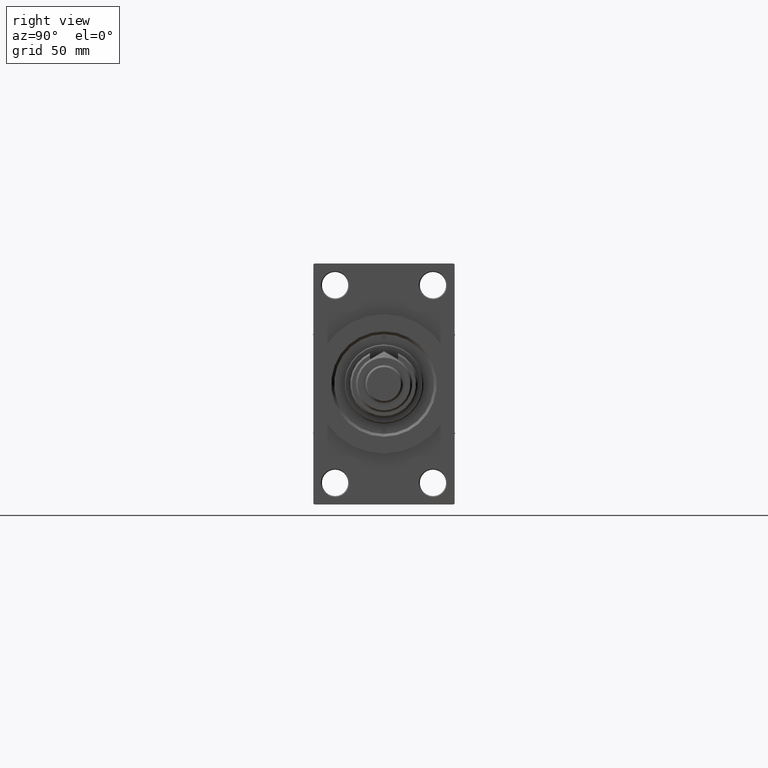
[diagram: clean part render]
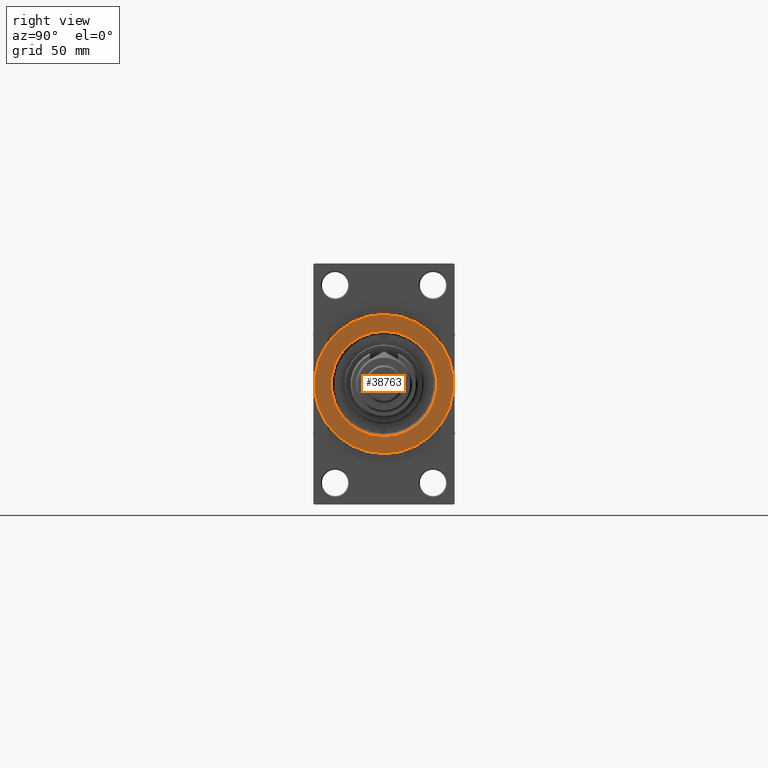
[diagram: same view with one face highlighted and labeled with its STEP entity id]
A machine part, right view. The second image highlights one B-rep face of the part: STEP entity #38763.
In plain terms, the highlighted planar face has unit normal (1, 0, 0).
Its self-contained STEP definition (entity closure, byte-faithful):
#418 = CIRCLE ( 'NONE', #20701, 37.00000000000000000 ) ;
#1827 = FACE_BOUND ( 'NONE', #17226, .T. ) ;
#2174 = EDGE_CURVE ( 'NONE', #27809, #32198, #19578, .T. ) ;
#4105 = ORIENTED_EDGE ( 'NONE', *, *, #38352, .T. ) ;
#4318 = CARTESIAN_POINT ( 'NONE',  ( 234.0000000000000284, 0.000000000000000000, 0.000000000000000000 ) ) ;
#6650 = FACE_OUTER_BOUND ( 'NONE', #37333, .T. ) ;
#9289 = ORIENTED_EDGE ( 'NONE', *, *, #2174, .T. ) ;
#10550 = EDGE_CURVE ( 'NONE', #44955, #48350, #39353, .T. ) ;
#12465 = CARTESIAN_POINT ( 'NONE',  ( 234.0000000000000284, 3.429011037612588881E-15, 27.99999999999999645 ) ) ;
#13854 = ORIENTED_EDGE ( 'NONE', *, *, #10550, .T. ) ;
#14364 = CIRCLE ( 'NONE', #20837, 27.99999999999999645 ) ;
#14510 = ORIENTED_EDGE ( 'NONE', *, *, #45498, .T. ) ;
#15665 = CARTESIAN_POINT ( 'NONE',  ( 234.0000000000000284, 0.000000000000000000, 0.000000000000000000 ) ) ;
#17226 = EDGE_LOOP ( 'NONE', ( #9289, #14510 ) ) ;
#17398 = CARTESIAN_POINT ( 'NONE',  ( 234.0000000000000284, 0.000000000000000000, 0.000000000000000000 ) ) ;
#19578 = CIRCLE ( 'NONE', #47164, 27.99999999999999645 ) ;
#19802 = DIRECTION ( 'NONE',  ( 0.000000000000000000, 0.000000000000000000, -1.000000000000000000 ) ) ;
#20701 = AXIS2_PLACEMENT_3D ( 'NONE', #17398, #40025, #48152 ) ;
#20837 = AXIS2_PLACEMENT_3D ( 'NONE', #33901, #42531, #45840 ) ;
#21715 = CARTESIAN_POINT ( 'NONE',  ( 234.0000000000000284, 0.000000000000000000, -27.99999999999999645 ) ) ;
#22146 = PLANE ( 'NONE',  #23952 ) ;
#22147 = CARTESIAN_POINT ( 'NONE',  ( 234.0000000000000284, 0.000000000000000000, 37.00000000000000000 ) ) ;
#23952 = AXIS2_PLACEMENT_3D ( 'NONE', #36892, #36636, #48593 ) ;
#26947 = DIRECTION ( 'NONE',  ( 1.000000000000000000, 0.000000000000000000, 0.000000000000000000 ) ) ;
#27809 = VERTEX_POINT ( 'NONE', #21715 ) ;
#32198 = VERTEX_POINT ( 'NONE', #12465 ) ;
#33901 = CARTESIAN_POINT ( 'NONE',  ( 234.0000000000000284, 0.000000000000000000, 0.000000000000000000 ) ) ;
#36636 = DIRECTION ( 'NONE',  ( 1.000000000000000000, 0.000000000000000000, 0.000000000000000000 ) ) ;
#36892 = CARTESIAN_POINT ( 'NONE',  ( 234.0000000000000284, 0.000000000000000000, 0.000000000000000000 ) ) ;
#37333 = EDGE_LOOP ( 'NONE', ( #13854, #4105 ) ) ;
#38352 = EDGE_CURVE ( 'NONE', #48350, #44955, #418, .T. ) ;
#38763 = ADVANCED_FACE ( 'NONE', ( #1827, #6650 ), #22146, .T. ) ;
#39353 = CIRCLE ( 'NONE', #49910, 37.00000000000000000 ) ;
#39917 = CARTESIAN_POINT ( 'NONE',  ( 234.0000000000000284, 4.531193156845206793E-15, -37.00000000000000000 ) ) ;
#40025 = DIRECTION ( 'NONE',  ( 1.000000000000000000, 0.000000000000000000, 0.000000000000000000 ) ) ;
#42531 = DIRECTION ( 'NONE',  ( -1.000000000000000000, -0.000000000000000000, -0.000000000000000000 ) ) ;
#43360 = DIRECTION ( 'NONE',  ( -1.000000000000000000, -0.000000000000000000, -0.000000000000000000 ) ) ;
#44955 = VERTEX_POINT ( 'NONE', #22147 ) ;
#45498 = EDGE_CURVE ( 'NONE', #32198, #27809, #14364, .T. ) ;
#45840 = DIRECTION ( 'NONE',  ( 0.000000000000000000, 0.000000000000000000, -1.000000000000000000 ) ) ;
#46669 = DIRECTION ( 'NONE',  ( 0.000000000000000000, 0.000000000000000000, -1.000000000000000000 ) ) ;
#47164 = AXIS2_PLACEMENT_3D ( 'NONE', #15665, #43360, #46669 ) ;
#48152 = DIRECTION ( 'NONE',  ( 0.000000000000000000, 0.000000000000000000, -1.000000000000000000 ) ) ;
#48350 = VERTEX_POINT ( 'NONE', #39917 ) ;
#48593 = DIRECTION ( 'NONE',  ( 0.000000000000000000, 0.000000000000000000, -1.000000000000000000 ) ) ;
#49910 = AXIS2_PLACEMENT_3D ( 'NONE', #4318, #26947, #19802 ) ;